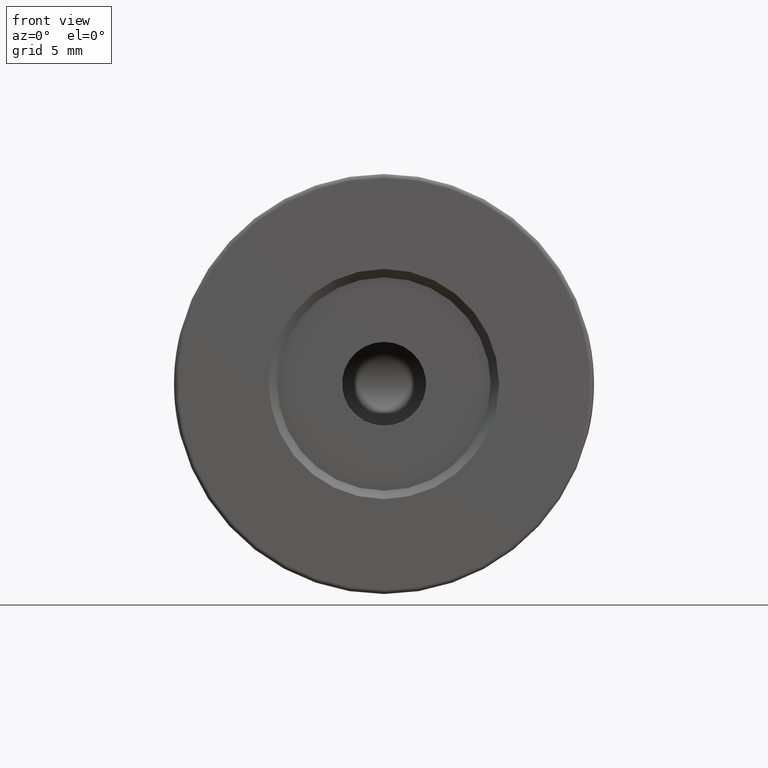
[diagram: clean part render]
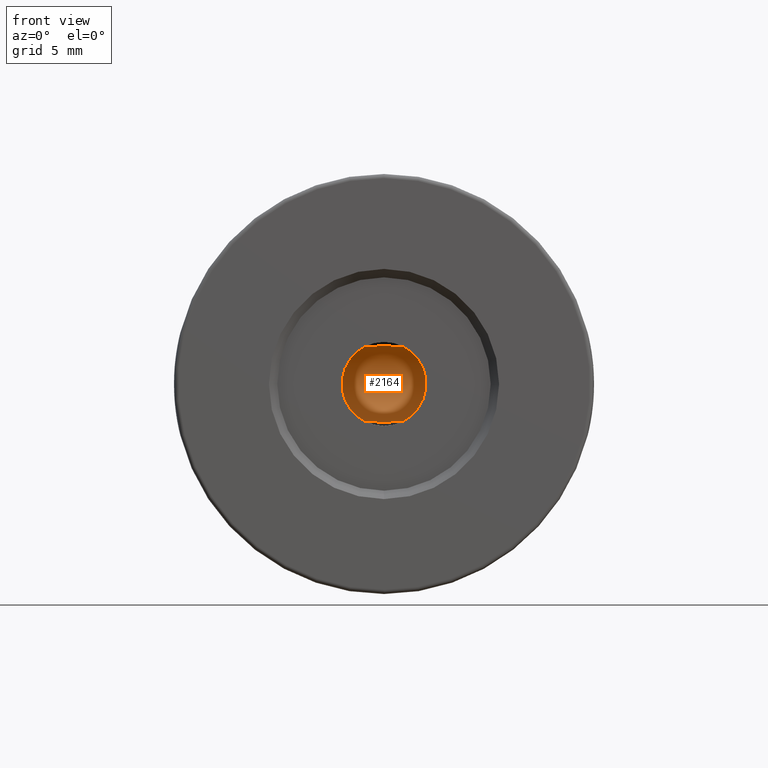
[diagram: same view with one face highlighted and labeled with its STEP entity id]
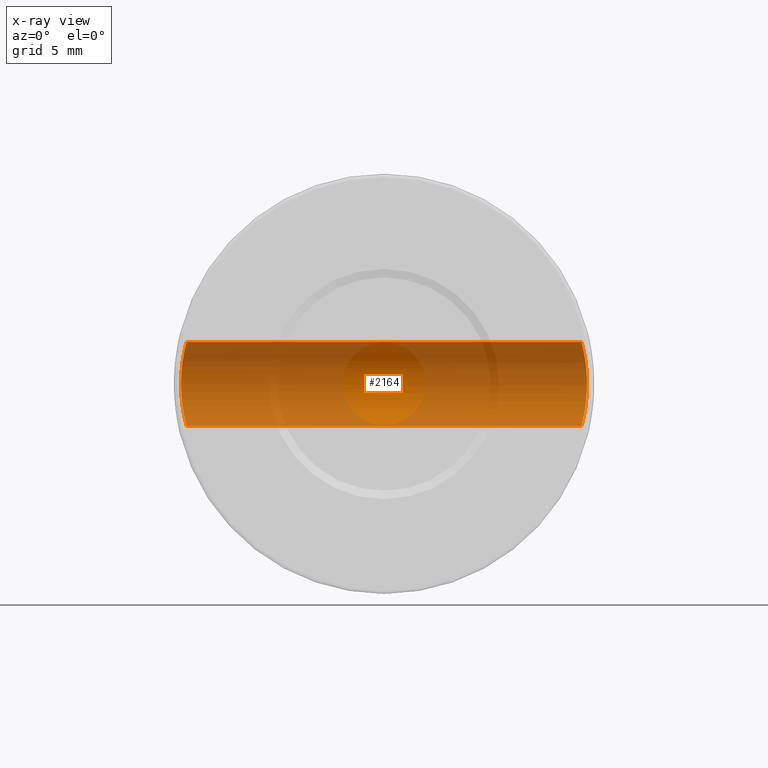
[diagram: x-ray of the same camera — body ghosted, the highlighted face saturated]
A machine part, front view. The second image highlights one B-rep face of the part: STEP entity #2164.
The next image is the same camera in x-ray: the body ghosted, the highlighted face saturated — about 84% of this face is hidden behind the body in this view.
In plain terms, the highlighted cylindrical surface (partial cylindrical patch) has radius 2.5 mm, axis along (1, -0, -0).
Its self-contained STEP definition (entity closure, byte-faithful):
#1 = CARTESIAN_POINT ( 'NONE',  ( -10.60451003076376963, 3.091284809329983396, 51.83991627007463165 ) ) ;
#16 = CARTESIAN_POINT ( 'NONE',  ( -10.56657809085664113, 3.290784664091183309, 51.63401304755031163 ) ) ;
#17 = CARTESIAN_POINT ( 'NONE',  ( -10.71220122383512852, 2.319907301163724789, 52.32428643419792280 ) ) ;
#29 = CARTESIAN_POINT ( 'NONE',  ( -34.26149993960420659, 1.805777567663612082, 52.46690698300362499 ) ) ;
#46 = CARTESIAN_POINT ( 'NONE',  ( -34.28887652143659892, 2.220855473628319476, 52.36141853907847121 ) ) ;
#49 = FACE_OUTER_BOUND ( 'NONE', #2134, .T. ) ;
#56 = CARTESIAN_POINT ( 'NONE',  ( -34.26768233899775140, 1.928450702677832140, 47.55651474073964380 ) ) ;
#61 = CARTESIAN_POINT ( 'NONE',  ( -34.32523023667044271, 2.561403185812752170, 52.21301639186180665 ) ) ;
#79 = CARTESIAN_POINT ( 'NONE',  ( -34.53230527916860382, 3.691218907221540224, 50.99634521866206427 ) ) ;
#82 = CARTESIAN_POINT ( 'NONE',  ( -10.74262275664473698, 1.930177161205952840, 52.44310909606989668 ) ) ;
#87 = CARTESIAN_POINT ( 'NONE',  ( -10.65708894827382913, 2.768782829137906631, 47.90912451781128567 ) ) ;
#105 = CARTESIAN_POINT ( 'NONE',  ( -10.66355808638853020, 2.724000045983033580, 47.88028934351015664 ) ) ;
#113 = CARTESIAN_POINT ( 'NONE',  ( -34.57580320139486929, 3.865360020691675391, 49.59368190429189838 ) ) ;
#124 = CARTESIAN_POINT ( 'NONE',  ( -10.73230878015822931, 2.087230713132417481, 47.59648392035289532 ) ) ;
#133 = CARTESIAN_POINT ( 'NONE',  ( -34.44072014335320375, 3.275087769982564012, 51.65163516128011167 ) ) ;
#155 = CARTESIAN_POINT ( 'NONE',  ( -34.55337786558520463, 3.777108215733488095, 50.76993000474953277 ) ) ;
#165 = CARTESIAN_POINT ( 'NONE',  ( -10.66726304065329600, 2.697473259695583270, 47.86401275857636506 ) ) ;
#173 = CARTESIAN_POINT ( 'NONE',  ( -34.32972789658752788, 2.597037757382610668, 47.80606120170923390 ) ) ;
#182 = CARTESIAN_POINT ( 'NONE',  ( -10.45068180356081555, 3.802385365945280427, 50.68683908686850259 ) ) ;
#190 = CARTESIAN_POINT ( 'NONE',  ( -34.29798120410805495, 2.317666568573463426, 47.67482637243039534 ) ) ;
#196 = CARTESIAN_POINT ( 'NONE',  ( -10.75775312123389149, 1.398252184769394724, 52.49999999860907707 ) ) ;
#198 = CARTESIAN_POINT ( 'NONE',  ( -10.44050617183825125, 3.842400022360674239, 50.52702085061757487 ) ) ;
#206 = CARTESIAN_POINT ( 'NONE',  ( -34.48542199941076802, 3.488133907643157450, 48.62795515750650566 ) ) ;
#213 = CARTESIAN_POINT ( 'NONE',  ( -10.48362473782650639, 3.668293309217088627, 51.04873908171698815 ) ) ;
#220 = CARTESIAN_POINT ( 'NONE',  ( -34.36814239117084924, 2.866752692717775108, 47.97665644382940542 ) ) ;
#229 = CARTESIAN_POINT ( 'NONE',  ( -10.52471369896614206, 3.489348258755469612, 51.37019330986836962 ) ) ;
#238 = CARTESIAN_POINT ( 'NONE',  ( -34.39195683728721065, 3.011790601257094746, 48.09040291757479224 ) ) ;
#246 = CARTESIAN_POINT ( 'NONE',  ( -10.49467356483282821, 3.621523675962395661, 48.85594951950409381 ) ) ;
#261 = CARTESIAN_POINT ( 'NONE',  ( -10.57756216025296503, 3.235068673057090116, 51.69607022927463902 ) ) ;
#277 = CARTESIAN_POINT ( 'NONE',  ( -10.62237732879240149, 2.988748929443705293, 51.92881521574155101 ) ) ;
#290 = CARTESIAN_POINT ( 'NONE',  ( -34.25264969898167067, 1.479168740011090888, 52.50000000000001421 ) ) ;
#325 = CARTESIAN_POINT ( 'NONE',  ( -34.25828129528923682, 1.724039373484273385, 52.47902595955837768 ) ) ;
#342 = CARTESIAN_POINT ( 'NONE',  ( -34.50000485386459559, 3.553290457850609485, 51.26737162494953282 ) ) ;
#351 = CARTESIAN_POINT ( 'NONE',  ( -10.64511971513091027, 2.848657792180071091, 47.96333552443435622 ) ) ;
#360 = CARTESIAN_POINT ( 'NONE',  ( -34.50232215744768638, 3.563461913674123238, 51.24990526171338701 ) ) ;
#366 = CARTESIAN_POINT ( 'NONE',  ( -10.75775277531308483, 1.400772240898691123, 52.49999872986310834 ) ) ;
#370 = CARTESIAN_POINT ( 'NONE',  ( -10.72153079174667845, 2.220792733527911178, 47.63856652012001547 ) ) ;
#380 = CARTESIAN_POINT ( 'NONE',  ( -34.58436337322496712, 3.898250868283255066, 50.00256562447481912 ) ) ;
#389 = CARTESIAN_POINT ( 'NONE',  ( -10.62573172584912662, 2.968816210385880172, 48.05490762724434717 ) ) ;
#397 = CARTESIAN_POINT ( 'NONE',  ( -34.48781591891391685, 3.499084047581886292, 51.35587356926217240 ) ) ;
#406 = CARTESIAN_POINT ( 'NONE',  ( -10.74289442880469458, 1.925329444816358482, 47.55585930734277866 ) ) ;
#415 = CARTESIAN_POINT ( 'NONE',  ( -34.45748932520367447, 3.357772379227993653, 51.55315505956523481 ) ) ;
#424 = CARTESIAN_POINT ( 'NONE',  ( -10.67446526847216326, 2.644881528431640927, 47.83260920280908834 ) ) ;
#426 = LINE ( 'NONE', #1764, #2314 ) ;
#433 = CARTESIAN_POINT ( 'NONE',  ( -34.33624370790817437, 2.646806171035611221, 47.83401143120503463 ) ) ;
#443 = CARTESIAN_POINT ( 'NONE',  ( -10.48205551591267337, 3.674751804841781766, 48.96658403318560460 ) ) ;
#452 = CARTESIAN_POINT ( 'NONE',  ( -34.44362134604234171, 3.289767286036399341, 48.36480798869413888 ) ) ;
#461 = CARTESIAN_POINT ( 'NONE',  ( -10.47815702457825893, 3.690975689928902348, 49.00309578717622827 ) ) ;
#469 = CARTESIAN_POINT ( 'NONE',  ( -34.50249771988713832, 3.564307096672559183, 48.75105678493986261 ) ) ;
#476 = CARTESIAN_POINT ( 'NONE',  ( -10.53001865072709897, 3.465178259825496987, 48.59361952052073264 ) ) ;
#486 = CARTESIAN_POINT ( 'NONE',  ( -34.38819594418153258, 2.989748358518202309, 48.07201074927399276 ) ) ;
#496 = CARTESIAN_POINT ( 'NONE',  ( -10.60456743008199965, 3.090805283783939483, 48.15993217394551351 ) ) ;
#504 = CARTESIAN_POINT ( 'NONE',  ( -34.43552205058370674, 3.248773439805321406, 48.31893139411262439 ) ) ;
#512 = CARTESIAN_POINT ( 'NONE',  ( -10.42602248527437148, 3.898315734512980857, 50.07909685307394199 ) ) ;
#530 = CARTESIAN_POINT ( 'NONE',  ( -10.54830106098724585, 3.379792021282826298, 51.52456859423467250 ) ) ;
#543 = CARTESIAN_POINT ( 'NONE',  ( -34.37712870117294273, 2.923183177175285419, 51.98126396666165761 ) ) ;
#547 = CARTESIAN_POINT ( 'NONE',  ( -10.52620299369501922, 3.482587794026747563, 51.38044518720352727 ) ) ;
#565 = CARTESIAN_POINT ( 'NONE',  ( -10.57466531684623590, 3.249874824940754081, 51.67985506952772568 ) ) ;
#566 = CARTESIAN_POINT ( 'NONE',  ( -10.73510165562314178, 2.048499619565407048, 52.41430491311632522 ) ) ;
#580 = CARTESIAN_POINT ( 'NONE',  ( -34.27508428324639311, 2.045357825997339063, 52.41514413048633259 ) ) ;
#583 = CARTESIAN_POINT ( 'NONE',  ( -10.68758540392554046, 2.542342441979154710, 52.22325597180674350 ) ) ;
#611 = CARTESIAN_POINT ( 'NONE',  ( -34.35488893522538234, 2.779496485272637596, 52.08380567107110437 ) ) ;
#626 = CARTESIAN_POINT ( 'NONE',  ( -34.43271705920283665, 3.234563490055812895, 51.69693926516953297 ) ) ;
#642 = CARTESIAN_POINT ( 'NONE',  ( -34.58335677791712470, 3.894452884664700854, 49.83950915355616473 ) ) ;
#653 = CARTESIAN_POINT ( 'NONE',  ( -10.65969737159077901, 2.750831973422131149, 47.89746761154574273 ) ) ;
#665 = CARTESIAN_POINT ( 'NONE',  ( -34.46296856652657681, 3.383991984354672855, 51.51937197551451675 ) ) ;
#684 = CARTESIAN_POINT ( 'NONE',  ( -34.51577102830118804, 3.621698728317531479, 51.14371251332772772 ) ) ;
#694 = CARTESIAN_POINT ( 'NONE',  ( -10.68788471831188147, 2.539433061057592145, 47.77555911956976331 ) ) ;
#702 = CARTESIAN_POINT ( 'NONE',  ( -34.33858617189356011, 2.664240156305451634, 47.84414879114950736 ) ) ;
#705 = EDGE_CURVE ( 'NONE', #832, #3307, #2867, .T. ) ;
#711 = CARTESIAN_POINT ( 'NONE',  ( -10.52248213327668580, 3.499559375285233198, 48.64487119425147910 ) ) ;
#720 = CARTESIAN_POINT ( 'NONE',  ( -34.51575700200433516, 3.621574355384398647, 48.85663851799883872 ) ) ;
#730 = CARTESIAN_POINT ( 'NONE',  ( -10.59815998889634869, 3.126107226014831930, 48.19304052233944446 ) ) ;
#738 = CARTESIAN_POINT ( 'NONE',  ( -34.54901993731350984, 3.759636630981272987, 49.17730288338825773 ) ) ;
#744 = CARTESIAN_POINT ( 'NONE',  ( -10.45998422923726245, 3.765243383525869625, 49.19437025671474828 ) ) ;
#752 = CARTESIAN_POINT ( 'NONE',  ( -34.41209200627842080, 3.125665187496010411, 48.19189920975489372 ) ) ;
#759 = CARTESIAN_POINT ( 'NONE',  ( -10.51473777734138970, 3.534110035999117549, 51.29943219369633312 ) ) ;
#766 = CARTESIAN_POINT ( 'NONE',  ( -34.54369817821186217, 3.738018949567921467, 49.11913398801508635 ) ) ;
#773 = CARTESIAN_POINT ( 'NONE',  ( -10.48808776789767450, 3.649523439025831095, 48.91157680457818202 ) ) ;
#790 = CARTESIAN_POINT ( 'NONE',  ( -10.62234100687279259, 2.988962205874707401, 51.92863791231235382 ) ) ;
#804 = CARTESIAN_POINT ( 'NONE',  ( -34.27804580035402893, 2.086575151996425515, 52.40370738585264121 ) ) ;
#808 = CARTESIAN_POINT ( 'NONE',  ( -10.64928047622004570, 2.821165976708113643, 52.05557845530005068 ) ) ;
#810 = CARTESIAN_POINT ( 'NONE',  ( -10.73222477241962736, 2.088477423457600679, 52.40319385077484071 ) ) ;
#823 = CARTESIAN_POINT ( 'NONE',  ( -34.36529390645532089, 2.848719826964702495, 52.03661785204336354 ) ) ;
#828 = CARTESIAN_POINT ( 'NONE',  ( -10.62192216117862387, 2.991433434158959681, 51.92659701926658755 ) ) ;
#832 = VERTEX_POINT ( 'NONE', #974 ) ;
#845 = CARTESIAN_POINT ( 'NONE',  ( -10.67850231187596677, 2.613847822169811597, 52.18465594208841907 ) ) ;
#876 = CARTESIAN_POINT ( 'NONE',  ( -34.34325654700258923, 2.698307815888073780, 52.13547844887226290 ) ) ;
#880 = CARTESIAN_POINT ( 'NONE',  ( -10.75338199211862111, 1.726486270665421818, 52.48392474897269722 ) ) ;
#902 = CARTESIAN_POINT ( 'NONE',  ( -10.60750994316350493, 3.074333090320318984, 48.14496214668830731 ) ) ;
#909 = CARTESIAN_POINT ( 'NONE',  ( -34.53407786932832835, 3.698557997503776118, 50.97930073135295714 ) ) ;
#928 = CARTESIAN_POINT ( 'NONE',  ( -34.47067577740222788, 3.420266628358986427, 51.47033024447709693 ) ) ;
#945 = B_SPLINE_CURVE_WITH_KNOTS ( 'NONE', 3,
 ( #366, #2337, #2566, #3414, #1657 ),
 .UNSPECIFIED., .F., .F.,
 ( 4, 1, 4 ),
 ( 0.5000000000000000000, 0.5000808699276406699, 0.5001617398552814509 ),
 .UNSPECIFIED. ) ;
#949 = CARTESIAN_POINT ( 'NONE',  ( -34.39043842415644292, 3.003052469193213891, 51.91709666612816676 ) ) ;
#960 = CARTESIAN_POINT ( 'NONE',  ( -10.75775311712865445, 1.398252184769388506, 47.50000000000000000 ) ) ;
#970 = CARTESIAN_POINT ( 'NONE',  ( -34.38671495544636514, 2.980983265076715849, 51.93519311268134686 ) ) ;
#974 = CARTESIAN_POINT ( 'NONE',  ( -34.25265052839081648, 1.398252184769064321, 52.50000002275201183 ) ) ;
#979 = CARTESIAN_POINT ( 'NONE',  ( -10.53234901536763068, 3.454478067074465031, 48.57802089546088098 ) ) ;
#987 = CARTESIAN_POINT ( 'NONE',  ( -34.53799626503334963, 3.714705747835421068, 49.05955801837914976 ) ) ;
#996 = CARTESIAN_POINT ( 'NONE',  ( -10.44780453270269227, 3.813763724046193904, 50.64573242924387131 ) ) ;
#1004 = CARTESIAN_POINT ( 'NONE',  ( -34.29425908866711126, 2.279086920309108422, 47.65995889923498652 ) ) ;
#1013 = CARTESIAN_POINT ( 'NONE',  ( -10.50806148963948772, 3.563549575484401544, 48.75024839466232152 ) ) ;
#1021 = CARTESIAN_POINT ( 'NONE',  ( -34.48392976938754373, 3.481356259984736745, 48.61769724345472810 ) ) ;
#1028 = CARTESIAN_POINT ( 'NONE',  ( -10.50321221870222033, 3.584739730790751810, 51.21273860960651803 ) ) ;
#1036 = CARTESIAN_POINT ( 'NONE',  ( -34.47355744787815723, 3.433811561718321137, 48.54805109590716228 ) ) ;
#1043 = CARTESIAN_POINT ( 'NONE',  ( -10.49003806498006774, 3.641181918000677697, 51.10440038306937538 ) ) ;
#1050 = CARTESIAN_POINT ( 'NONE',  ( -34.34582147389684792, 2.716998224130628969, 47.87571452041553499 ) ) ;
#1051 = VERTEX_POINT ( 'NONE', #2721 ) ;
#1061 = CARTESIAN_POINT ( 'NONE',  ( -10.64199037483500376, 2.868482314852578430, 52.02208733020434295 ) ) ;
#1077 = CARTESIAN_POINT ( 'NONE',  ( -10.62128130365141665, 2.995209600827993590, 51.92347243009042757 ) ) ;
#1090 = CARTESIAN_POINT ( 'NONE',  ( -34.29807699724855752, 2.318030296328834172, 52.32474586825994578 ) ) ;
#1092 = CARTESIAN_POINT ( 'NONE',  ( -10.63421686758947970, 2.917547560799627959, 51.98579877779258851 ) ) ;
#1112 = AXIS2_PLACEMENT_3D ( 'NONE', #1931, #2187, #1899 ) ;
#1117 = ORIENTED_EDGE ( 'NONE', *, *, #2452, .T. ) ;
#1127 = CARTESIAN_POINT ( 'NONE',  ( -34.31168622885313368, 2.447977223333628771, 52.26958429960113506 ) ) ;
#1133 = VERTEX_POINT ( 'NONE', #3473 ) ;
#1143 = CARTESIAN_POINT ( 'NONE',  ( -34.33157960057448577, 2.611711056690420030, 52.18608434733541657 ) ) ;
#1159 = CARTESIAN_POINT ( 'NONE',  ( -34.41613788108606542, 3.147235597055060730, 51.78654533557784134 ) ) ;
#1167 = CARTESIAN_POINT ( 'NONE',  ( -10.62462732574900137, 2.975400541768086438, 48.06025488629381215 ) ) ;
#1177 = CARTESIAN_POINT ( 'NONE',  ( -34.58436337322496712, 3.898250868283255066, 50.00256562447481912 ) ) ;
#1185 = CARTESIAN_POINT ( 'NONE',  ( -10.63324832102012252, 2.923347842031653432, 48.01886132524574435 ) ) ;
#1193 = CARTESIAN_POINT ( 'NONE',  ( -34.57390506594121860, 3.857997678078325610, 49.55136306853511030 ) ) ;
#1204 = CARTESIAN_POINT ( 'NONE',  ( -10.70476268513722040, 2.392250165703759812, 47.70577093963481019 ) ) ;
#1208 = CARTESIAN_POINT ( 'NONE',  ( -10.75775311712865445, 1.398252184769388506, 47.50000000000000000 ) ) ;
#1213 = CARTESIAN_POINT ( 'NONE',  ( -34.44657920401194673, 3.304266349219565857, 51.61777152094362719 ) ) ;
#1225 = CARTESIAN_POINT ( 'NONE',  ( -10.69883739643130127, 2.446902964351171939, 47.72992432406083196 ) ) ;
#1234 = CARTESIAN_POINT ( 'NONE',  ( -34.39480158165835633, 3.028510403437007614, 51.89576953583303265 ) ) ;
#1240 = CARTESIAN_POINT ( 'NONE',  ( -35.00520183104453764, 1.398252184769388728, 52.50000000000000711 ) ) ;
#1245 = CARTESIAN_POINT ( 'NONE',  ( -10.69234182699091029, 2.502332762425851342, 47.75691348785275636 ) ) ;
#1252 = CARTESIAN_POINT ( 'NONE',  ( -34.32261253376618981, 2.540665696800001871, 47.77588027153785788 ) ) ;
#1259 = CARTESIAN_POINT ( 'NONE',  ( -10.54743776124181487, 3.383981544471660552, 48.48060507619342729 ) ) ;
#1267 = CARTESIAN_POINT ( 'NONE',  ( -34.28731963629589785, 2.202316232205861368, 47.63248163846130012 ) ) ;
#1275 = CARTESIAN_POINT ( 'NONE',  ( -10.46126713321748980, 3.760105976176286280, 50.82135131907102021 ) ) ;
#1285 = CARTESIAN_POINT ( 'NONE',  ( -34.48798181167604326, 3.499709095090228761, 48.64575056969566447 ) ) ;
#1293 = CARTESIAN_POINT ( 'NONE',  ( -10.56979142705341523, 3.274545867989681724, 48.34774838026559962 ) ) ;
#1302 = CARTESIAN_POINT ( 'NONE',  ( -34.36439915013973945, 2.842708138994634925, 47.95936680348138736 ) ) ;
#1310 = CARTESIAN_POINT ( 'NONE',  ( -10.47228985999027984, 3.715187967750325893, 50.93925226523126071 ) ) ;
#1317 = CARTESIAN_POINT ( 'NONE',  ( -34.36086175260453501, 2.819442343588710376, 47.94322949632093156 ) ) ;
#1325 = CARTESIAN_POINT ( 'NONE',  ( -10.45693435472681898, 3.777473808941779865, 49.23120360244115545 ) ) ;
#1334 = CARTESIAN_POINT ( 'NONE',  ( -34.27515475477474638, 2.046380977628984077, 47.58512721045182303 ) ) ;
#1344 = CARTESIAN_POINT ( 'NONE',  ( -10.55675560199068030, 3.338960214665321669, 51.57597055680643905 ) ) ;
#1359 = CARTESIAN_POINT ( 'NONE',  ( -10.66434863343947193, 2.718656590239557413, 52.12325621671036657 ) ) ;
#1369 = B_SPLINE_CURVE_WITH_KNOTS ( 'NONE', 3,
 ( #1177, #2268, #642, #1730, #2824, #113, #1193, #3106, #2580, #1857, #3181, #3440, #738, #766, #2139, #987, #2618, #2402, #3475, #720, #2384, #2106, #469, #1809, #1790, #1285, #206, #1021, #2636, #1036, #3197, #2950, #3459, #1825, #2688, #2917, #2350, #452, #504, #1554, #2653, #2123, #752, #1840, #3491, #3215, #238, #2367, #2930, #486, #1572, #2882, #2672, #1590, #220, #1302, #1317, #2417, #3161, #2091, #1050, #702, #433, #1518, #173, #1252, #3424, #2071, #2900, #1535, #190, #1004, #1267, #2965, #1370, #1334, #1387, #56, #2765, #2751, #1624 ),
 .UNSPECIFIED., .F., .F.,
 ( 4, 2, 2, 2, 2, 2, 1, 2, 2, 1, 2, 2, 2, 1, 2, 2, 2, 1, 1, 2, 2, 2, 2, 2, 2, 2, 1, 1, 2, 2, 2, 1, 2, 2, 2, 2, 2, 1, 2, 2, 2, 2, 2, 2, 4 ),
 ( 0.5000000000000000000, 0.5156264305114821589, 0.5234396457672232383, 0.5312528610229643178, 0.5390660762787053972, 0.5468792915344464767, 0.5546925067901874451, 0.5585991144180579848, 0.5625057220459284135, 0.5703189373016708252, 0.5742255449295419201, 0.5781321525574130149, 0.5859453678131565368, 0.5898519754410288529, 0.5918052792549645114, 0.5937585830689002808, 0.6015717983246386957, 0.6054784059525079032, 0.6074317097664424514, 0.6084083616734096145, 0.6093850135803768886, 0.6171982288361124169, 0.6211048364639806252, 0.6250114440918488334, 0.6328246593475860271, 0.6367312669754541243, 0.6386845707893880064, 0.6396612226963550585, 0.6401495486498377518, 0.6406378746033205562, 0.6484510898590505334, 0.6523576974869158551, 0.6543110013008488490, 0.6562643051147819540, 0.6640775203705154839, 0.6679841279983823599, 0.6718907356262491248, 0.6797039508819834319, 0.6836105585098505300, 0.6875171661377177390, 0.6953303813934523792, 0.7031435966491871303, 0.7109568119049217705, 0.7187700271606565217, 0.7500228881835950823 ),
 .UNSPECIFIED. ) ;
#1370 = CARTESIAN_POINT ( 'NONE',  ( -34.27801529105192913, 2.086261137826833423, 47.59617280642540749 ) ) ;
#1387 = CARTESIAN_POINT ( 'NONE',  ( -34.26995450286286626, 1.966833508878569337, 47.56517006760059019 ) ) ;
#1412 = CARTESIAN_POINT ( 'NONE',  ( -34.26758693008568457, 1.926671815424231937, 52.44384497077907525 ) ) ;
#1426 = CARTESIAN_POINT ( 'NONE',  ( -34.44970727494349916, 3.319682574710787648, 51.59941220978929977 ) ) ;
#1434 = CARTESIAN_POINT ( 'NONE',  ( -10.63729871194081689, 2.898126532626254637, 47.99980086150132763 ) ) ;
#1442 = CARTESIAN_POINT ( 'NONE',  ( -34.44318529403668094, 3.287420730698372040, 51.63748006440275162 ) ) ;
#1453 = CARTESIAN_POINT ( 'NONE',  ( -10.71238521260664989, 2.317432552167130844, 47.67501877049204495 ) ) ;
#1463 = CARTESIAN_POINT ( 'NONE',  ( -34.38425514538115380, 2.966316391723938573, 51.94710199268846651 ) ) ;
#1473 = CARTESIAN_POINT ( 'NONE',  ( -10.62334915145944869, 2.982996198438272017, 48.06645691304603929 ) ) ;
#1483 = CARTESIAN_POINT ( 'NONE',  ( -34.53991951118973702, 3.722633376748305079, 50.92141146752515368 ) ) ;
#1493 = CARTESIAN_POINT ( 'NONE',  ( -10.73534138325592835, 2.045066429713204847, 47.58477174515252983 ) ) ;
#1501 = CARTESIAN_POINT ( 'NONE',  ( -34.49285213743693390, 3.521659789373802862, 51.32016033927565246 ) ) ;
#1510 = CARTESIAN_POINT ( 'NONE',  ( -10.74912821630106841, 1.806382460815962654, 47.53221428563572459 ) ) ;
#1518 = CARTESIAN_POINT ( 'NONE',  ( -34.33169738663551840, 2.612276421327162534, 47.81447061565805967 ) ) ;
#1527 = CARTESIAN_POINT ( 'NONE',  ( -10.44278610239772043, 3.833526773282269762, 49.42876823398358965 ) ) ;
#1530 = VERTEX_POINT ( 'NONE', #2064 ) ;
#1535 = CARTESIAN_POINT ( 'NONE',  ( -34.30394296115250796, 2.375711128245744597, 47.69891051549688399 ) ) ;
#1545 = CARTESIAN_POINT ( 'NONE',  ( -10.42607548033009657, 3.898122724173479270, 49.83585510696215692 ) ) ;
#1554 = CARTESIAN_POINT ( 'NONE',  ( -34.43261872436876558, 3.233925465961397183, 48.30269162736107091 ) ) ;
#1562 = CARTESIAN_POINT ( 'NONE',  ( -10.46658545540376117, 3.738506329210308454, 50.87957062683218368 ) ) ;
#1572 = CARTESIAN_POINT ( 'NONE',  ( -34.38777286729961702, 2.987249506198846216, 48.06995074299586435 ) ) ;
#1581 = CARTESIAN_POINT ( 'NONE',  ( -10.56731726940006588, 3.286927316647586306, 48.36195018710103000 ) ) ;
#1590 = CARTESIAN_POINT ( 'NONE',  ( -34.37590333122768271, 2.915794773613471502, 48.01286234910332240 ) ) ;
#1601 = CARTESIAN_POINT ( 'NONE',  ( -10.50162839173475504, 3.591555904555544299, 48.80005595999612211 ) ) ;
#1617 = CARTESIAN_POINT ( 'NONE',  ( -10.55317987587285700, 3.356315340147318693, 51.55441317483267483 ) ) ;
#1624 = CARTESIAN_POINT ( 'NONE',  ( -34.25265054498071038, 1.398252184769378959, 47.49999999999540279 ) ) ;
#1631 = CARTESIAN_POINT ( 'NONE',  ( -34.38208088998977985, 2.953269912493940552, 51.95758413939320519 ) ) ;
#1634 = CARTESIAN_POINT ( 'NONE',  ( -10.53178313106798214, 3.457167416287477035, 51.41852374660732750 ) ) ;
#1652 = CYLINDRICAL_SURFACE ( 'NONE', #1112, 2.500000000000002220 ) ;
#1657 = CARTESIAN_POINT ( 'NONE',  ( -10.75775312123389149, 1.398252184769394724, 52.49999999860907707 ) ) ;
#1668 = CARTESIAN_POINT ( 'NONE',  ( -10.68047853276402392, 2.598575359166925391, 52.19309750927958902 ) ) ;
#1672 = EDGE_CURVE ( 'NONE', #1530, #2703, #426, .T. ) ;
#1713 = CARTESIAN_POINT ( 'NONE',  ( -34.45068667024360565, 3.324488735377299609, 51.59362069242199311 ) ) ;
#1730 = CARTESIAN_POINT ( 'NONE',  ( -34.58023691178212999, 3.882480711100856130, 49.71662314764871837 ) ) ;
#1764 = CARTESIAN_POINT ( 'NONE',  ( -35.00520183104453764, 1.398252184769388506, 47.50000000000000000 ) ) ;
#1770 = CARTESIAN_POINT ( 'NONE',  ( -34.52236465314178560, 3.649729440710859141, 51.08800073522399288 ) ) ;
#1781 = CARTESIAN_POINT ( 'NONE',  ( -10.68536135104677598, 2.559892940821373308, 47.78618977470753748 ) ) ;
#1790 = CARTESIAN_POINT ( 'NONE',  ( -34.49177194387510781, 3.516779192500759432, 48.67236566857346958 ) ) ;
#1799 = CARTESIAN_POINT ( 'NONE',  ( -10.51747623924441655, 3.521995248913170506, 48.68038661780639131 ) ) ;
#1809 = CARTESIAN_POINT ( 'NONE',  ( -34.49541331747759898, 3.532988666338715333, 48.69872623433300873 ) ) ;
#1817 = CARTESIAN_POINT ( 'NONE',  ( -10.57782312020555260, 3.233863439448596999, 48.30230010775625971 ) ) ;
#1825 = CARTESIAN_POINT ( 'NONE',  ( -34.45485491286883928, 3.344828457864135629, 48.43128346913505311 ) ) ;
#1832 = CARTESIAN_POINT ( 'NONE',  ( -10.56077055046612223, 3.319318282669161402, 48.40015022089198027 ) ) ;
#1840 = CARTESIAN_POINT ( 'NONE',  ( -34.40566408743152493, 3.090010173492414136, 48.15891080212086450 ) ) ;
#1847 = CARTESIAN_POINT ( 'NONE',  ( -10.51837359180878906, 3.517933571144462590, 51.32579008385193475 ) ) ;
#1857 = CARTESIAN_POINT ( 'NONE',  ( -34.56252324084474026, 3.813464430356851231, 49.35313806840352413 ) ) ;
#1866 = CARTESIAN_POINT ( 'NONE',  ( -10.55978731338614196, 3.324144027144519509, 48.40596271069814804 ) ) ;
#1883 = CARTESIAN_POINT ( 'NONE',  ( -10.62866622019876139, 2.951544250994886820, 51.95942332555382137 ) ) ;
#1895 = CARTESIAN_POINT ( 'NONE',  ( -34.30016066775699102, 2.338896842613362281, 52.31637011546521165 ) ) ;
#1897 = CARTESIAN_POINT ( 'NONE',  ( -10.65923473107763897, 2.754486190467166917, 52.10060455302392768 ) ) ;
#1899 = DIRECTION ( 'NONE',  ( 0.0000000000000000000, 0.0000000000000000000, -1.000000000000000000 ) ) ;
#1915 = CARTESIAN_POINT ( 'NONE',  ( -10.58680048196471368, 3.187015570641599016, 51.74674765687402100 ) ) ;
#1916 = CARTESIAN_POINT ( 'NONE',  ( -10.67160018275316169, 2.665846511305267619, 52.15490737904907093 ) ) ;
#1918 = ORIENTED_EDGE ( 'NONE', *, *, #705, .F. ) ;
#1931 = CARTESIAN_POINT ( 'NONE',  ( -35.00520183104453764, 1.398252184769388506, 50.00000000000000000 ) ) ;
#1959 = CARTESIAN_POINT ( 'NONE',  ( -34.34694435704273729, 2.724696208994463742, 52.11927320858514889 ) ) ;
#1978 = B_SPLINE_CURVE_WITH_KNOTS ( 'NONE', 3,
 ( #960, #2004, #3096, #2045, #1510, #406, #2815, #1493, #124, #2835, #370, #2853, #1453, #2590, #1204, #1225, #1245, #694, #1781, #2873, #424, #165, #105, #653, #87, #2339, #3416, #351, #1434, #1185, #2531, #389, #1167, #2259, #1473, #3342, #2296, #902, #496, #730, #2922, #2062, #1817, #1293, #1581, #2358, #2098, #1832, #1866, #3153, #2909, #1259, #2424, #3224, #979, #476, #3483, #711, #1799, #2694, #1013, #3450, #1601, #246, #773, #443, #461, #2939, #2081, #2130, #744, #1325, #2662, #1527, #3433, #1545, #512, #2892, #2645, #2410, #2957, #2627, #198, #3188, #996, #182, #3173, #1275, #1562, #3206, #1310, #2375, #213, #1043, #2394, #3466, #1028, #2115, #759, #1847, #2679, #229, #547, #1634, #2724, #2457, #530, #1617, #3501, #1344, #2991, #2710, #16, #565, #261, #3272, #1915, #2440, #1, #2149, #2976, #3240, #2166, #1077, #828, #790, #277, #1883, #1092, #1061, #3255, #808, #2186, #3007, #1897, #1359, #1916, #2510, #845, #1668, #583, #3257, #3008, #2494, #2776, #17, #3289, #3026, #3057, #810, #566, #2458, #82, #880, #2168, #2759 ),
 .UNSPECIFIED., .F., .F.,
 ( 4, 2, 2, 2, 2, 1, 2, 2, 1, 2, 2, 2, 1, 2, 2, 2, 1, 1, 1, 2, 2, 2, 2, 2, 2, 2, 1, 2, 2, 2, 1, 2, 2, 2, 2, 2, 1, 2, 2, 2, 2, 2, 2, 2, 2, 2, 2, 2, 1, 2, 2, 1, 2, 2, 2, 1, 2, 2, 2, 1, 1, 2, 2, 2, 2, 2, 2, 2, 1, 1, 2, 2, 2, 1, 2, 2, 2, 2, 2, 1, 2, 2, 2, 2, 2, 2, 4 ),
 ( 0.0000000000000000000, 0.01562500000001054018, 0.03125000000002108036, 0.03906250000002619432, 0.04687500000003131523, 0.05468750000003642919, 0.05859375000003903128, 0.06250000000004163336, 0.07031250000004683753, 0.07421875000004946044, 0.07812500000005206946, 0.08593750000005730139, 0.08984375000005956347, 0.09179687500006103451, 0.09375000000006250556, 0.1015625000000675571, 0.1054687500000700551, 0.1074218750000712763, 0.1083984375000718869, 0.1088867187500721923, 0.1093750000000724837, 0.1171875000000670991, 0.1210937500000639766, 0.1250000000000608402, 0.1328125000000539291, 0.1367187500000505151, 0.1386718750000482392, 0.1396484375000477673, 0.1406250000000472955, 0.1484375000000436040, 0.1523437500000412448, 0.1542968750000399958, 0.1562500000000387468, 0.1640625000000329459, 0.1679687500000300870, 0.1718750000000272282, 0.1796875000000215106, 0.1835937500000192624, 0.1875000000000170142, 0.1953125000000136280, 0.2031250000000102418, 0.2187500000000034694, 0.2499999999999899525, 0.2656249999999831801, 0.2734374999999797939, 0.2812499999999764078, 0.2890624999999730216, 0.2968749999999696354, 0.3046874999999662492, 0.3085937499999645284, 0.3124999999999628075, 0.3203124999999594769, 0.3242187499999578670, 0.3281249999999562017, 0.3359374999999515943, 0.3398437499999487632, 0.3417968749999468203, 0.3437499999999448219, 0.3515624999999367173, 0.3554687499999322209, 0.3574218749999298894, 0.3583984374999292233, 0.3593749999999285571, 0.3671874999999283906, 0.3710937499999283351, 0.3749999999999282241, 0.3828124999999287792, 0.3867187499999290012, 0.3886718749999291678, 0.3896484374999291678, 0.3901367187499291678, 0.3906249999999291678, 0.3984374999999308331, 0.4023437499999320544, 0.4042968749999331091, 0.4062499999999341638, 0.4140624999999390488, 0.4179687499999418243, 0.4218749999999446554, 0.4296874999999496514, 0.4335937499999524269, 0.4374999999999552025, 0.4453124999999606981, 0.4531249999999661937, 0.4609374999999716893, 0.4687499999999771849, 0.5000000000000000000 ),
 .UNSPECIFIED. ) ;
#2004 = CARTESIAN_POINT ( 'NONE',  ( -10.75775311712865800, 1.478895169680504385, 47.50000000000002132 ) ) ;
#2012 = CARTESIAN_POINT ( 'NONE',  ( -34.41236803619815987, 3.126786760425209977, 51.80631262430758710 ) ) ;
#2033 = CARTESIAN_POINT ( 'NONE',  ( -34.48024853829521419, 3.464553031678364370, 51.40729843790219178 ) ) ;
#2045 = CARTESIAN_POINT ( 'NONE',  ( -10.75242780081261174, 1.722847840886496673, 47.51981399015354413 ) ) ;
#2053 = CARTESIAN_POINT ( 'NONE',  ( -34.47793529355768527, 3.453928640738793465, 51.42277278285457243 ) ) ;
#2062 = CARTESIAN_POINT ( 'NONE',  ( -10.58398987589641216, 3.202030749090179373, 48.26819460365246783 ) ) ;
#2064 = CARTESIAN_POINT ( 'NONE',  ( -34.25265054498071038, 1.398252184769378959, 47.49999999999540279 ) ) ;
#2071 = CARTESIAN_POINT ( 'NONE',  ( -34.30972174416374543, 2.429380409534758201, 47.72246266101624457 ) ) ;
#2081 = CARTESIAN_POINT ( 'NONE',  ( -10.47051593470279407, 3.722504065036277066, 49.07824749841178402 ) ) ;
#2091 = CARTESIAN_POINT ( 'NONE',  ( -34.35092222196195166, 2.752779821155800555, 47.89829672656117765 ) ) ;
#2098 = CARTESIAN_POINT ( 'NONE',  ( -10.56228348234809111, 3.311881166529826448, 48.39123262895898847 ) ) ;
#2106 = CARTESIAN_POINT ( 'NONE',  ( -34.50695619509957623, 3.583718661852329568, 48.78542191985461329 ) ) ;
#2115 = CARTESIAN_POINT ( 'NONE',  ( -10.50766408937953145, 3.565365691942201654, 51.24710472444203191 ) ) ;
#2118 = ORIENTED_EDGE ( 'NONE', *, *, #2346, .T. ) ;
#2123 = CARTESIAN_POINT ( 'NONE',  ( -34.42332169522260443, 3.185531405772529912, 48.25173542517474345 ) ) ;
#2130 = CARTESIAN_POINT ( 'NONE',  ( -10.46683874819991900, 3.737504584575799704, 49.11705898936765635 ) ) ;
#2134 = EDGE_LOOP ( 'NONE', ( #1918, #2118, #1117, #3341, #2630, #2190 ) ) ;
#2139 = CARTESIAN_POINT ( 'NONE',  ( -34.54002452358994191, 3.723024222460553645, 49.08028894891096883 ) ) ;
#2145 = EDGE_CURVE ( 'NONE', #2703, #1051, #1978, .T. ) ;
#2149 = CARTESIAN_POINT ( 'NONE',  ( -10.61255753572117655, 3.045764872686569369, 51.88045600329542140 ) ) ;
#2163 = CARTESIAN_POINT ( 'NONE',  ( -34.25265052839081648, 1.398252184769064321, 52.50000002275201183 ) ) ;
#2164 = ADVANCED_FACE ( 'NONE', ( #49 ), #1652, .F. ) ;
#2166 = CARTESIAN_POINT ( 'NONE',  ( -10.61969784651964410, 3.004503414530171668, 51.91573604598297464 ) ) ;
#2168 = CARTESIAN_POINT ( 'NONE',  ( -10.75770789459454946, 1.563061693627832538, 52.49983513836797044 ) ) ;
#2181 = CARTESIAN_POINT ( 'NONE',  ( -34.32269212779655732, 2.540851447515475314, 52.22371342454837162 ) ) ;
#2182 = B_SPLINE_CURVE_WITH_KNOTS ( 'NONE', 3,
 ( #2163, #290, #2469, #2490, #325, #29, #3253, #1412, #2506, #580, #804, #3317, #46, #2200, #1090, #1895, #3023, #1127, #2216, #2181, #61, #1143, #2234, #876, #1959, #3269, #3054, #611, #2708, #823, #2988, #543, #1631, #1463, #2285, #970, #949, #1234, #3350, #2844, #2012, #1159, #2861, #626, #133, #1442, #1213, #3368, #1426, #1713, #2307, #415, #665, #928, #3388, #2053, #2033, #3126, #397, #1501, #342, #360, #3086, #3333, #684, #1770, #2523, #79, #909, #1483, #2807, #2598, #155, #2560, #2250, #2540, #2328, #380 ),
 .UNSPECIFIED., .F., .F.,
 ( 4, 2, 2, 2, 2, 2, 1, 2, 2, 1, 2, 2, 2, 1, 2, 2, 2, 1, 1, 2, 2, 2, 2, 2, 2, 2, 1, 2, 2, 2, 1, 2, 2, 2, 2, 2, 1, 2, 2, 2, 2, 2, 4 ),
 ( 0.2501157360126268214, 0.2657335025118418015, 0.2735423857614492360, 0.2813512690110566705, 0.2891601522606640495, 0.2969690355102714840, 0.3047779187598789186, 0.3086823603846823860, 0.3125868020094859090, 0.3203956852590927329, 0.3243001268838964224, 0.3282045685087001674, 0.3360134517583068248, 0.3399178933831101812, 0.3418701141955119427, 0.3438223350079137042, 0.3516312182575179746, 0.3555356598823200542, 0.3574878806947208165, 0.3584639911009209201, 0.3594401015071210237, 0.3672489847567196319, 0.3711534263815194357, 0.3750578680063191839, 0.3828667512559186248, 0.3867711928807184285, 0.3887234136931189132, 0.3896995240993191834, 0.3906756345055194535, 0.3984845177551247231, 0.4023889593799274689, 0.4043411801923288973, 0.4062934010047303812, 0.4141022842543342630, 0.4180067258791361207, 0.4219111675039380893, 0.4297200507535418601, 0.4336244923783443284, 0.4375289340031467966, 0.4453378172527530099, 0.4531467005023591677, 0.4687644670015728154, 0.5000000000000000000 ),
 .UNSPECIFIED. ) ;
#2186 = CARTESIAN_POINT ( 'NONE',  ( -10.65159541338161198, 2.805837286584336621, 52.06610518278518640 ) ) ;
#2187 = DIRECTION ( 'NONE',  ( 1.000000000000000000, -0.0000000000000000000, -0.0000000000000000000 ) ) ;
#2190 = ORIENTED_EDGE ( 'NONE', *, *, #3131, .T. ) ;
#2200 = CARTESIAN_POINT ( 'NONE',  ( -34.29431945050662733, 2.279110160737300550, 52.33977014953806162 ) ) ;
#2216 = CARTESIAN_POINT ( 'NONE',  ( -34.31821333559936704, 2.503614424601297461, 52.24245597247713135 ) ) ;
#2234 = CARTESIAN_POINT ( 'NONE',  ( -34.33608617815751529, 2.645985465770875233, 52.16675172963735463 ) ) ;
#2250 = CARTESIAN_POINT ( 'NONE',  ( -34.56756822307434618, 3.833332788825374315, 50.57206592067358741 ) ) ;
#2259 = CARTESIAN_POINT ( 'NONE',  ( -10.62388814465463227, 2.979798253922068874, 48.06383882972557586 ) ) ;
#2268 = CARTESIAN_POINT ( 'NONE',  ( -34.58438561327194094, 3.898334264179342590, 49.92130290170457130 ) ) ;
#2285 = CARTESIAN_POINT ( 'NONE',  ( -34.38571617980997530, 2.975046749038483540, 51.94003877001332370 ) ) ;
#2296 = CARTESIAN_POINT ( 'NONE',  ( -10.61555385987403888, 3.028785299051679925, 48.10447571370993813 ) ) ;
#2307 = CARTESIAN_POINT ( 'NONE',  ( -34.45094144038385053, 3.325738783177676794, 51.59211394683274676 ) ) ;
#2314 = VECTOR ( 'NONE', #2911, 1000.000000000000000 ) ;
#2328 = CARTESIAN_POINT ( 'NONE',  ( -34.58431891779281386, 3.898084168968126040, 50.16500095842827278 ) ) ;
#2333 = DIRECTION ( 'NONE',  ( 1.000000000000000000, -0.0000000000000000000, -0.0000000000000000000 ) ) ;
#2337 = CARTESIAN_POINT ( 'NONE',  ( -10.75775289145710190, 1.400352262137120718, 52.49999915321134125 ) ) ;
#2339 = CARTESIAN_POINT ( 'NONE',  ( -10.65554558621004233, 2.779286966483742738, 47.91605539505568601 ) ) ;
#2346 = EDGE_CURVE ( 'NONE', #832, #1133, #2182, .T. ) ;
#2350 = CARTESIAN_POINT ( 'NONE',  ( -34.44820663209988965, 3.312372979925382488, 48.39158897298644746 ) ) ;
#2358 = CARTESIAN_POINT ( 'NONE',  ( -10.56391064301607763, 3.303839945648426202, 48.38172606725053981 ) ) ;
#2367 = CARTESIAN_POINT ( 'NONE',  ( -34.39043951122364717, 3.002945015340449331, 48.08295802079705794 ) ) ;
#2375 = CARTESIAN_POINT ( 'NONE',  ( -10.47777082684953065, 3.692608870392294573, 50.99371643839459267 ) ) ;
#2384 = CARTESIAN_POINT ( 'NONE',  ( -34.51324721832737197, 3.610824642181073241, 48.83600299420102431 ) ) ;
#2394 = CARTESIAN_POINT ( 'NONE',  ( -10.49443793112169310, 3.622465759679736497, 51.14162514317147412 ) ) ;
#2402 = CARTESIAN_POINT ( 'NONE',  ( -34.52661855604166874, 3.667621899549967868, 48.94979994725283490 ) ) ;
#2410 = CARTESIAN_POINT ( 'NONE',  ( -10.43146499598587518, 3.877481800831427350, 50.32423554543061073 ) ) ;
#2417 = CARTESIAN_POINT ( 'NONE',  ( -34.35854923058014521, 2.804111315517775704, 47.93272002940566523 ) ) ;
#2424 = CARTESIAN_POINT ( 'NONE',  ( -10.53966556753362838, 3.420558592813458976, 48.53006894784073211 ) ) ;
#2440 = CARTESIAN_POINT ( 'NONE',  ( -10.59807076732465347, 3.126980561815792203, 51.80684960860665456 ) ) ;
#2452 = EDGE_CURVE ( 'NONE', #1133, #1530, #1369, .T. ) ;
#2457 = CARTESIAN_POINT ( 'NONE',  ( -10.54431162555829360, 3.398706502644502692, 51.49953276804397717 ) ) ;
#2458 = CARTESIAN_POINT ( 'NONE',  ( -10.74033125497369312, 1.968770040967197321, 52.43437863031121537 ) ) ;
#2469 = CARTESIAN_POINT ( 'NONE',  ( -34.25372203042341113, 1.560659625647742521, 52.49606844197765554 ) ) ;
#2490 = CARTESIAN_POINT ( 'NONE',  ( -34.25694026224091715, 1.683161598307280293, 52.48405114420977213 ) ) ;
#2494 = CARTESIAN_POINT ( 'NONE',  ( -10.70443588610294938, 2.394827889974911361, 52.29286643723209238 ) ) ;
#2506 = CARTESIAN_POINT ( 'NONE',  ( -34.26991302517361504, 1.966150412365553546, 52.43498634185588259 ) ) ;
#2510 = CARTESIAN_POINT ( 'NONE',  ( -10.67394748181954434, 2.648398513644575125, 52.16507009017469443 ) ) ;
#2523 = CARTESIAN_POINT ( 'NONE',  ( -34.52840305807840338, 3.674981101397450267, 51.03291123781929883 ) ) ;
#2531 = CARTESIAN_POINT ( 'NONE',  ( -10.62827805862610653, 2.953539933232762760, 48.04262997191990081 ) ) ;
#2540 = CARTESIAN_POINT ( 'NONE',  ( -34.58011478711653552, 3.882168967626823619, 50.32812387786047736 ) ) ;
#2560 = CARTESIAN_POINT ( 'NONE',  ( -34.56256781750168727, 3.813732364803623209, 50.64996031642956353 ) ) ;
#2566 = CARTESIAN_POINT ( 'NONE',  ( -10.75775306594705860, 1.399512273949568897, 52.49999978827980129 ) ) ;
#2580 = CARTESIAN_POINT ( 'NONE',  ( -34.56758654008899612, 3.833374463698223877, 49.43267290171470307 ) ) ;
#2590 = CARTESIAN_POINT ( 'NONE',  ( -10.71030778668683503, 2.338251845930571893, 47.68336874343405185 ) ) ;
#2598 = CARTESIAN_POINT ( 'NONE',  ( -34.55037290242646719, 3.765055916444087547, 50.80616473622279727 ) ) ;
#2618 = CARTESIAN_POINT ( 'NONE',  ( -34.53249561006625612, 3.692039406731389750, 49.00496577802123710 ) ) ;
#2627 = CARTESIAN_POINT ( 'NONE',  ( -10.43648446060348611, 3.858052394323864487, 50.44832193573772372 ) ) ;
#2630 = ORIENTED_EDGE ( 'NONE', *, *, #2145, .T. ) ;
#2636 = CARTESIAN_POINT ( 'NONE',  ( -34.47835700622533750, 3.455955106702251367, 48.57972021489703707 ) ) ;
#2645 = CARTESIAN_POINT ( 'NONE',  ( -10.43016537474106009, 3.882484663468927621, 50.28332927360796134 ) ) ;
#2653 = CARTESIAN_POINT ( 'NONE',  ( -34.42640494981479549, 3.201698727464583616, 48.26848832670604850 ) ) ;
#2662 = CARTESIAN_POINT ( 'NONE',  ( -10.44776976456410544, 3.813993415946835164, 49.35102538161716978 ) ) ;
#2672 = CARTESIAN_POINT ( 'NONE',  ( -34.38144323525830970, 2.949763339089797931, 48.03916816240341348 ) ) ;
#2679 = CARTESIAN_POINT ( 'NONE',  ( -10.52215786200590841, 3.500899096592182680, 51.35240099868718744 ) ) ;
#2688 = CARTESIAN_POINT ( 'NONE',  ( -34.45342034665755904, 3.337851177797198865, 48.42266475109762069 ) ) ;
#2694 = CARTESIAN_POINT ( 'NONE',  ( -10.51036542383574712, 3.553437408833351352, 48.73288016738068507 ) ) ;
#2703 = VERTEX_POINT ( 'NONE', #1208 ) ;
#2708 = CARTESIAN_POINT ( 'NONE',  ( -34.36046448218286287, 2.817120072489975868, 52.05867049247011380 ) ) ;
#2710 = CARTESIAN_POINT ( 'NONE',  ( -10.56199101250440719, 3.313389350780499676, 51.60720248136932042 ) ) ;
#2721 = CARTESIAN_POINT ( 'NONE',  ( -10.75775277531308483, 1.400772240898691123, 52.49999872986310834 ) ) ;
#2724 = CARTESIAN_POINT ( 'NONE',  ( -10.53658929590244853, 3.435006155470948563, 51.45027489263336662 ) ) ;
#2751 = CARTESIAN_POINT ( 'NONE',  ( -34.25265066272850589, 1.560402683531050050, 47.50000000000000711 ) ) ;
#2759 = CARTESIAN_POINT ( 'NONE',  ( -10.75775277531308483, 1.400772240898691123, 52.49999872986310834 ) ) ;
#2765 = CARTESIAN_POINT ( 'NONE',  ( -34.25694543538727999, 1.724468045769632640, 47.51579507651418055 ) ) ;
#2776 = CARTESIAN_POINT ( 'NONE',  ( -10.70622746958932403, 2.377934763026787746, 52.30014367840404077 ) ) ;
#2807 = CARTESIAN_POINT ( 'NONE',  ( -34.54356796060010737, 3.737516586820440967, 50.88289497874619371 ) ) ;
#2815 = CARTESIAN_POINT ( 'NONE',  ( -10.74055264802875875, 1.965160418971330758, 47.56477696206901840 ) ) ;
#2824 = CARTESIAN_POINT ( 'NONE',  ( -34.57893418755334380, 3.877465556909696964, 49.67562903278856368 ) ) ;
#2835 = CARTESIAN_POINT ( 'NONE',  ( -10.72636834714510101, 2.163316367415119235, 47.61960974752036435 ) ) ;
#2844 = CARTESIAN_POINT ( 'NONE',  ( -34.40589806362139313, 3.091149904983871100, 51.83975389247126486 ) ) ;
#2853 = CARTESIAN_POINT ( 'NONE',  ( -10.71611989039038093, 2.278727290222370083, 47.66008678493169270 ) ) ;
#2861 = CARTESIAN_POINT ( 'NONE',  ( -34.42657149363605384, 3.202853141483256838, 51.73094316403768289 ) ) ;
#2867 = LINE ( 'NONE', #1240, #3166 ) ;
#2873 = CARTESIAN_POINT ( 'NONE',  ( -10.67898984607053592, 2.610437434459604855, 47.81320628330989564 ) ) ;
#2882 = CARTESIAN_POINT ( 'NONE',  ( -34.38771819878314773, 2.986927456125019198, 48.06968425288014402 ) ) ;
#2892 = CARTESIAN_POINT ( 'NONE',  ( -10.42705158325907711, 3.894432946978846122, 50.16070950317539001 ) ) ;
#2900 = CARTESIAN_POINT ( 'NONE',  ( -34.30574384668678789, 2.392730145365975059, 47.70622247542168992 ) ) ;
#2909 = CARTESIAN_POINT ( 'NONE',  ( -10.55296637917463798, 3.357524876593115160, 48.44652055345936503 ) ) ;
#2911 = DIRECTION ( 'NONE',  ( 1.000000000000000000, -0.0000000000000000000, -0.0000000000000000000 ) ) ;
#2917 = CARTESIAN_POINT ( 'NONE',  ( -34.45244905413537140, 3.333112005361831276, 48.41686050229540683 ) ) ;
#2922 = CARTESIAN_POINT ( 'NONE',  ( -10.59445844981685525, 3.146199053617969366, 48.21243923077764038 ) ) ;
#2930 = CARTESIAN_POINT ( 'NONE',  ( -34.38884296427529819, 2.993564852386836783, 48.07516311287719191 ) ) ;
#2939 = CARTESIAN_POINT ( 'NONE',  ( -10.47640660498944243, 3.698224077263420728, 49.01991178304476904 ) ) ;
#2950 = CARTESIAN_POINT ( 'NONE',  ( -34.46186240357620534, 3.378645102190296345, 48.47394285512241652 ) ) ;
#2957 = CARTESIAN_POINT ( 'NONE',  ( -10.43458761997714568, 3.865409358432845277, 50.40600943156623259 ) ) ;
#2965 = CARTESIAN_POINT ( 'NONE',  ( -34.28425718424882263, 2.166107220688779922, 47.62047480789357223 ) ) ;
#2976 = CARTESIAN_POINT ( 'NONE',  ( -10.61497147234010541, 3.031921984396874326, 51.89245589269303593 ) ) ;
#2988 = CARTESIAN_POINT ( 'NONE',  ( -34.37309152292377945, 2.898042292589912083, 52.00026168202139587 ) ) ;
#2991 = CARTESIAN_POINT ( 'NONE',  ( -10.55773550570406627, 3.334181606825510791, 51.58183139331972455 ) ) ;
#3007 = CARTESIAN_POINT ( 'NONE',  ( -10.65249293293447685, 2.799858131135655626, 52.07017394353964335 ) ) ;
#3008 = CARTESIAN_POINT ( 'NONE',  ( -10.70046203536010587, 2.431367238261045394, 52.27663631734191796 ) ) ;
#3023 = CARTESIAN_POINT ( 'NONE',  ( -34.30573236675552096, 2.393111125870009293, 52.29385858847379609 ) ) ;
#3026 = CARTESIAN_POINT ( 'NONE',  ( -10.72288709386843131, 2.204594157632600915, 52.36674351383993553 ) ) ;
#3054 = CARTESIAN_POINT ( 'NONE',  ( -34.35338147969297751, 2.769239204526441345, 52.09057597996362432 ) ) ;
#3057 = CARTESIAN_POINT ( 'NONE',  ( -10.72594683895611567, 2.168530309212409968, 52.37874403320927286 ) ) ;
#3086 = CARTESIAN_POINT ( 'NONE',  ( -34.50682289416155868, 3.583092677623910483, 51.21526472596950441 ) ) ;
#3096 = CARTESIAN_POINT ( 'NONE',  ( -10.75668805386544769, 1.560100067682604674, 47.50390500056495569 ) ) ;
#3106 = CARTESIAN_POINT ( 'NONE',  ( -34.56986290510828752, 3.842265132169277564, 49.47234130247899486 ) ) ;
#3126 = CARTESIAN_POINT ( 'NONE',  ( -34.48118596962942917, 3.468845656451788440, 51.40098560065877820 ) ) ;
#3131 = EDGE_CURVE ( 'NONE', #1051, #3307, #945, .T. ) ;
#3153 = CARTESIAN_POINT ( 'NONE',  ( -10.55957662424236254, 3.325178140313069797, 48.40720737073272772 ) ) ;
#3161 = CARTESIAN_POINT ( 'NONE',  ( -34.35764467378859877, 2.798077697872164649, 47.92862186133869784 ) ) ;
#3166 = VECTOR ( 'NONE', #2333, 1000.000000000000000 ) ;
#3173 = CARTESIAN_POINT ( 'NONE',  ( -10.45651490754851309, 3.779148862534157605, 50.76350199337653635 ) ) ;
#3181 = CARTESIAN_POINT ( 'NONE',  ( -34.55961305451553756, 3.801953961258908166, 49.31165516725273790 ) ) ;
#3188 = CARTESIAN_POINT ( 'NONE',  ( -10.44277018625809461, 3.833558039652738447, 50.56652604505659809 ) ) ;
#3197 = CARTESIAN_POINT ( 'NONE',  ( -34.46584608863121701, 3.397542948049672606, 48.49891677673840462 ) ) ;
#3206 = CARTESIAN_POINT ( 'NONE',  ( -10.47025680275401527, 3.723524227970317568, 50.91844644550842247 ) ) ;
#3215 = CARTESIAN_POINT ( 'NONE',  ( -34.39518996574851428, 3.030528575468152575, 48.10634144072329832 ) ) ;
#3224 = CARTESIAN_POINT ( 'NONE',  ( -10.53590965397730983, 3.438070092159918545, 48.55438622021713257 ) ) ;
#3240 = CARTESIAN_POINT ( 'NONE',  ( -10.61818952971818319, 3.013288210498552111, 51.90833047861156047 ) ) ;
#3253 = CARTESIAN_POINT ( 'NONE',  ( -34.26345380780681893, 1.848082027013869366, 52.45952407190701194 ) ) ;
#3255 = CARTESIAN_POINT ( 'NONE',  ( -10.64573901249762677, 2.844430916668421183, 52.03941283699984410 ) ) ;
#3257 = CARTESIAN_POINT ( 'NONE',  ( -10.69431024340463310, 2.486468489925140357, 52.25137420493502560 ) ) ;
#3269 = CARTESIAN_POINT ( 'NONE',  ( -34.35078610550937128, 2.751384864755574977, 52.10217632150506972 ) ) ;
#3272 = CARTESIAN_POINT ( 'NONE',  ( -10.58375804988685331, 3.202955632804645347, 51.73020071059023195 ) ) ;
#3289 = CARTESIAN_POINT ( 'NONE',  ( -10.71593139897400349, 2.281339582546813904, 52.33919193000297554 ) ) ;
#3307 = VERTEX_POINT ( 'NONE', #196 ) ;
#3317 = CARTESIAN_POINT ( 'NONE',  ( -34.28401376549511781, 2.163067110284659034, 52.38047386747342671 ) ) ;
#3333 = CARTESIAN_POINT ( 'NONE',  ( -34.50880725685794914, 3.591694377612696609, 51.19969144280701556 ) ) ;
#3341 = ORIENTED_EDGE ( 'NONE', *, *, #1672, .T. ) ;
#3342 = CARTESIAN_POINT ( 'NONE',  ( -10.61987164096908920, 3.003599049502412299, 48.08336474951715189 ) ) ;
#3350 = CARTESIAN_POINT ( 'NONE',  ( -34.40292642921737354, 3.074516548258669602, 51.85487433046752415 ) ) ;
#3368 = CARTESIAN_POINT ( 'NONE',  ( -34.44820020498708146, 3.312275495857873064, 51.60829794766077327 ) ) ;
#3388 = CARTESIAN_POINT ( 'NONE',  ( -34.47440147006284406, 3.437640223873840828, 51.44621657506957035 ) ) ;
#3414 = CARTESIAN_POINT ( 'NONE',  ( -10.75775312484084978, 1.398672224646475781, 52.50000000000002132 ) ) ;
#3416 = CARTESIAN_POINT ( 'NONE',  ( -10.64996067905592447, 2.816980013198646215, 47.94123184759874334 ) ) ;
#3424 = CARTESIAN_POINT ( 'NONE',  ( -34.31588000981349040, 2.484643514993491564, 47.74774139942340412 ) ) ;
#3433 = CARTESIAN_POINT ( 'NONE',  ( -10.43026627197695788, 3.882253059674070528, 49.67256777598411333 ) ) ;
#3440 = CARTESIAN_POINT ( 'NONE',  ( -34.55377552792148776, 3.778695768193336413, 49.23508877299095587 ) ) ;
#3450 = CARTESIAN_POINT ( 'NONE',  ( -10.50358629646020248, 3.583068483846578278, 48.78469361699694673 ) ) ;
#3459 = CARTESIAN_POINT ( 'NONE',  ( -34.45699076150680895, 3.355189985279273479, 48.44417053966263609 ) ) ;
#3466 = CARTESIAN_POINT ( 'NONE',  ( -10.49693029463215588, 3.611794956655865363, 51.16215062623714260 ) ) ;
#3473 = CARTESIAN_POINT ( 'NONE',  ( -34.58436337322496712, 3.898250868283255066, 50.00256562447481912 ) ) ;
#3475 = CARTESIAN_POINT ( 'NONE',  ( -34.52017690343077305, 3.640382294757702031, 48.89397580372040153 ) ) ;
#3483 = CARTESIAN_POINT ( 'NONE',  ( -10.52907118885013737, 3.469515327526776716, 48.60000513651924337 ) ) ;
#3491 = CARTESIAN_POINT ( 'NONE',  ( -34.39761001983504229, 3.044417718256207550, 48.11836436361900837 ) ) ;
#3501 = CARTESIAN_POINT ( 'NONE',  ( -10.55531889801349976, 3.345944087749026963, 51.56733120440158302 ) ) ;